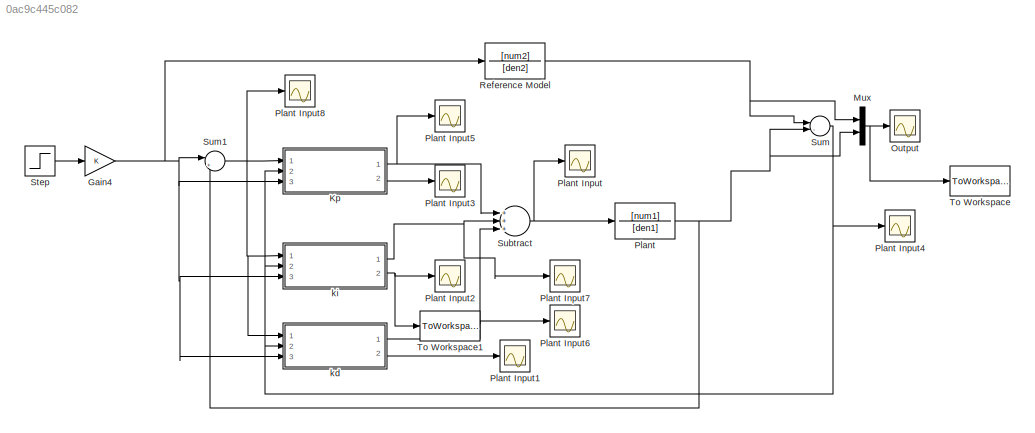
MODEL slx_0ac9c445c082
KIND model
CONFIG AbsTol = auto
CONFIG EnableMultiTasking = off
CONFIG FixedStep = auto
CONFIG MaxStep = auto
CONFIG MinStep = auto
CONFIG RelTol = 1e-3
CONFIG SampleTimeConstraint = Unconstrained
CONFIG Solver = VariableStepAuto
CONFIG SolverName = VariableStepAuto
CONFIG StartTime = 0.0
CONFIG StopTime = 10.0
BLOCK [Gain] Gain4
  OutDataTypeStr = Inherit: Inherit via internal rule
  ParamDataTypeStr = Inherit: Inherit via internal rule
  SaturateOnIntegerOverflow = off
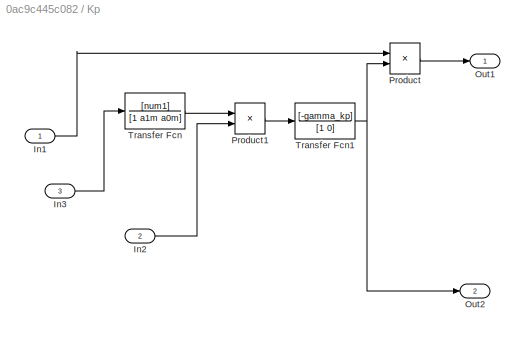
BLOCK [SubSystem] Kp 
  Ports = [3, 2]
  RequestExecContextInheritance = off
  Variant = off
BLOCK [Inport] Kp /In1
  IconDisplay = Port number
BLOCK [Inport] Kp /In2
  IconDisplay = Port number
  Port = 2
BLOCK [Inport] Kp /In3
  IconDisplay = Port number
  Port = 3
BLOCK [Outport] Kp /Out1
  IconDisplay = Port number
BLOCK [Outport] Kp /Out2
  IconDisplay = Port number
  Port = 2
BLOCK [Product] Kp /Product
  InputSameDT = off
  OutDataTypeStr = Inherit: Inherit via internal rule
  Ports = [2, 1]
  RndMeth = Floor
  SaturateOnIntegerOverflow = off
BLOCK [Product] Kp /Product1
  InputSameDT = off
  OutDataTypeStr = Inherit: Inherit via internal rule
  Ports = [2, 1]
  RndMeth = Floor
  SaturateOnIntegerOverflow = off
BLOCK [TransferFcn] Kp /Transfer Fcn
  Denominator = [1 a1m a0m]
  Numerator = [num1]
BLOCK [TransferFcn] Kp /Transfer Fcn1
  Denominator = [1 0]
  Numerator = [-gamma_kp]
BLOCK [Mux] Mux
  DisplayOption = bar
  Inputs = 2
  Ports = [2, 1]
BLOCK [Scope] Output
  NumInputPorts = 1
  Ports = [1]
  ScopeSpecificationString = Simulink.scopes.TimeScopeBlockCfg('CurrentConfiguration', extmgr.ConfigurationSet(extmgr.Configuration('Core','General UI',true),extmgr.Configuration('Core','Source UI',true),extmgr.Configuration('Sources','WiredSimulink',true,'DataLoggingVariableName','ScopeData1'),extmgr.Configuration('Visuals','Time Domain',true,'SerializedDisplays',{struct('MinYLimReal','-6917908617196979200000000000.00000','M...<+1652ch>
BLOCK [TransferFcn] Plant
  Denominator = [den1]
  Numerator = [num1]
BLOCK [Scope] Plant Input
  NumInputPorts = 1
  Ports = [1]
  ScopeSpecificationString = Simulink.scopes.TimeScopeBlockCfg('CurrentConfiguration', extmgr.ConfigurationSet(extmgr.Configuration('Core','General UI',true),extmgr.Configuration('Core','Source UI',true),extmgr.Configuration('Sources','WiredSimulink',true,'DataLoggingVariableName','ScopeData2'),extmgr.Configuration('Visuals','Time Domain',true,'SerializedDisplays',{struct('MinYLimReal','-81488705853174238000000000000000000000...<+3051ch>
BLOCK [Scope] Plant Input1
  NumInputPorts = 1
  Ports = [1]
  ScopeSpecificationString = Simulink.scopes.TimeScopeBlockCfg('CurrentConfiguration', extmgr.ConfigurationSet(extmgr.Configuration('Core','General UI',true),extmgr.Configuration('Core','Source UI',true),extmgr.Configuration('Sources','WiredSimulink',true,'DataLoggingVariableName','ScopeData3','DataLoggingSaveFormat','StructureWithTime','DataLoggingLimitDataPoints',true,'DataLoggingDecimation','1','DataLoggingDecimateData',tr...<+1711ch>
BLOCK [Scope] Plant Input2
  NumInputPorts = 1
  Ports = [1]
  ScopeSpecificationString = Simulink.scopes.TimeScopeBlockCfg('CurrentConfiguration', extmgr.ConfigurationSet(extmgr.Configuration('Core','General UI',true),extmgr.Configuration('Core','Source UI',true),extmgr.Configuration('Sources','WiredSimulink',true,'DataLoggingVariableName','ScopeData4'),extmgr.Configuration('Visuals','Time Domain',true,'SerializedDisplays',{struct('MinYLimReal','-11822518832671255000000000000000000000...<+2007ch>
BLOCK [Scope] Plant Input3
  NumInputPorts = 1
  Ports = [1]
  ScopeSpecificationString = Simulink.scopes.TimeScopeBlockCfg('CurrentConfiguration', extmgr.ConfigurationSet(extmgr.Configuration('Core','General UI',true),extmgr.Configuration('Core','Source UI',true),extmgr.Configuration('Sources','WiredSimulink',true,'DataLoggingVariableName','ScopeData5','DataLoggingSaveFormat','StructureWithTime','DataLoggingLimitDataPoints',true,'DataLoggingDecimation','1','DataLoggingDecimateData',tr...<+1677ch>
BLOCK [Scope] Plant Input4
  NumInputPorts = 1
  Ports = [1]
  ScopeSpecificationString = C++SS(StrPVP('Location','[6, 39, 1286, 762]'),StrPVP('Open','off'),MxPVP('AxesTitles',24,'struct(''axes1'',''%<SignalLabel>'')'),MxPVP('ScopeGraphics',28,'struct(''FigureColor'',''[0.5 0.5 0.5]'',''AxesColor'',''[0 0 0]'',''AxesTickColor'',''[1 1 1]'',''LineColors'',''[1 1 0;1 0 1;0 1 1;1 0 0;0 1 0;0 0 1]'',''LineStyles'',''-|-|-|-|-|-'',''LineWidths'',''[0.5 0.5 0.5 0.5 0.5 0.5]'',''MarkerStyles'...<+301ch>
BLOCK [Scope] Plant Input5
  NumInputPorts = 1
  Ports = [1]
  ScopeSpecificationString = Simulink.scopes.TimeScopeBlockCfg('CurrentConfiguration', extmgr.ConfigurationSet(extmgr.Configuration('Core','General UI',true),extmgr.Configuration('Core','Source UI',true),extmgr.Configuration('Sources','WiredSimulink',true,'DataLoggingVariableName','ScopeData7'),extmgr.Configuration('Visuals','Time Domain',true,'SerializedDisplays',{struct('MinYLimReal','-59839951419879215000000000000000000000...<+2904ch>
BLOCK [Scope] Plant Input6
  NumInputPorts = 1
  Ports = [1]
  ScopeSpecificationString = C++SS(StrPVP('SaveName','ScopeData8'),StrPVP('LimitDataPoints','on'),StrPVP('DataFormat','Array'),StrPVP('Decimation','1'),StrPVP('BlockParamSampleInput','off'))
BLOCK [Scope] Plant Input7
  NumInputPorts = 1
  Ports = [1]
  ScopeSpecificationString = C++SS(StrPVP('Location','[6, 39, 1286, 762]'),StrPVP('Open','off'),MxPVP('AxesTitles',24,'struct(''axes1'',''%<SignalLabel>'')'),MxPVP('ScopeGraphics',28,'struct(''FigureColor'',''[0.5 0.5 0.5]'',''AxesColor'',''[0 0 0]'',''AxesTickColor'',''[1 1 1]'',''LineColors'',''[1 1 0;1 0 1;0 1 1;1 0 0;0 1 0;0 0 1]'',''LineStyles'',''-|-|-|-|-|-'',''LineWidths'',''[0.5 0.5 0.5 0.5 0.5 0.5]'',''MarkerStyles'...<+301ch>
BLOCK [Scope] Plant Input8
  NumInputPorts = 1
  Ports = [1]
  ScopeSpecificationString = Simulink.scopes.TimeScopeBlockCfg('CurrentConfiguration', extmgr.ConfigurationSet(extmgr.Configuration('Core','General UI',true),extmgr.Configuration('Core','Source UI',true),extmgr.Configuration('Sources','WiredSimulink',true),extmgr.Configuration('Visuals','Time Domain',true,'SerializedDisplays',{struct('MinYLimReal','-12653807591008628000000000000000000000000000000000000000000000000000000000000...<+2254ch>
BLOCK [TransferFcn] Reference Model
  Denominator = [den2]
  Numerator = [num2]
BLOCK [Step] Step
  SampleTime = 0
  Time = 0
BLOCK [Sum] Subtract
  InputSameDT = off
  Inputs = +++
  OutDataTypeStr = Inherit: Inherit via internal rule
  Ports = [3, 1]
  SaturateOnIntegerOverflow = off
BLOCK [Sum] Sum
  IconShape = round
  InputSameDT = off
  Inputs = |-+|
  OutDataTypeStr = Inherit: Inherit via internal rule
  Ports = [2, 1]
BLOCK [Sum] Sum1
  IconShape = round
  InputSameDT = off
  Inputs = |+-
  OutDataTypeStr = Inherit: Inherit via internal rule
  Ports = [2, 1]
  SaturateOnIntegerOverflow = off
BLOCK [ToWorkspace] To Workspace
  MaxDataPoints = inf
  Ports = [1]
  SampleTime = -1
  SaveFormat = Timeseries
  VariableName = simout
BLOCK [ToWorkspace] To Workspace1
  MaxDataPoints = inf
  Ports = [1]
  SampleTime = -1
  SaveFormat = Timeseries
  VariableName = simout1
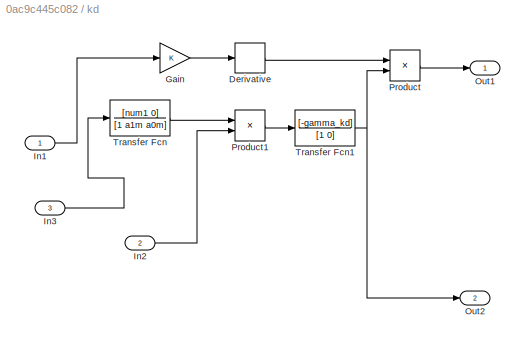
BLOCK [SubSystem] kd
  Ports = [3, 2]
  RequestExecContextInheritance = off
  Variant = off
BLOCK [Derivative] kd/Derivative
BLOCK [Gain] kd/Gain
  OutDataTypeStr = Inherit: Inherit via internal rule
  ParamDataTypeStr = Inherit: Inherit via internal rule
  SaturateOnIntegerOverflow = off
BLOCK [Inport] kd/In1
  IconDisplay = Port number
BLOCK [Inport] kd/In2
  IconDisplay = Port number
  Port = 2
BLOCK [Inport] kd/In3
  IconDisplay = Port number
  Port = 3
BLOCK [Outport] kd/Out1
  IconDisplay = Port number
BLOCK [Outport] kd/Out2
  IconDisplay = Port number
  Port = 2
BLOCK [Product] kd/Product
  InputSameDT = off
  OutDataTypeStr = Inherit: Inherit via internal rule
  Ports = [2, 1]
  RndMeth = Floor
  SaturateOnIntegerOverflow = off
BLOCK [Product] kd/Product1
  InputSameDT = off
  OutDataTypeStr = Inherit: Inherit via internal rule
  Ports = [2, 1]
  RndMeth = Floor
  SaturateOnIntegerOverflow = off
BLOCK [TransferFcn] kd/Transfer Fcn
  Denominator = [1 a1m a0m]
  Numerator = [num1 0]
BLOCK [TransferFcn] kd/Transfer Fcn1
  Denominator = [1 0]
  Numerator = [-gamma_kd]
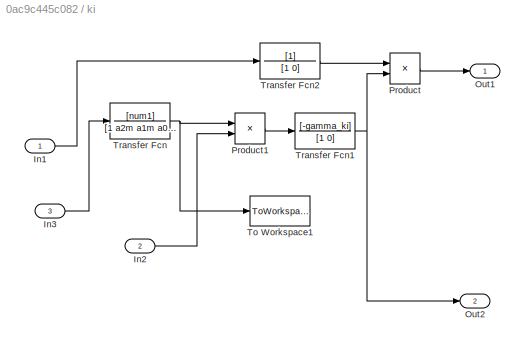
BLOCK [SubSystem] ki
  Ports = [3, 2]
  RequestExecContextInheritance = off
  Variant = off
BLOCK [Inport] ki/In1
  IconDisplay = Port number
BLOCK [Inport] ki/In2
  IconDisplay = Port number
  Port = 2
BLOCK [Inport] ki/In3
  IconDisplay = Port number
  Port = 3
BLOCK [Outport] ki/Out1
  IconDisplay = Port number
BLOCK [Outport] ki/Out2
  IconDisplay = Port number
  Port = 2
BLOCK [Product] ki/Product
  InputSameDT = off
  OutDataTypeStr = Inherit: Inherit via internal rule
  Ports = [2, 1]
  RndMeth = Floor
  SaturateOnIntegerOverflow = off
BLOCK [Product] ki/Product1
  InputSameDT = off
  OutDataTypeStr = Inherit: Inherit via internal rule
  Ports = [2, 1]
  RndMeth = Floor
  SaturateOnIntegerOverflow = off
BLOCK [ToWorkspace] ki/To Workspace1
  MaxDataPoints = inf
  Ports = [1]
  SampleTime = -1
  SaveFormat = Timeseries
  VariableName = simout2
BLOCK [TransferFcn] ki/Transfer Fcn
  Denominator = [1 a2m a1m a0m]
  Numerator = [num1]
BLOCK [TransferFcn] ki/Transfer Fcn1
  Denominator = [1 0]
  Numerator = [-gamma_ki]
BLOCK [TransferFcn] ki/Transfer Fcn2
  Denominator = [1 0]
NET Gain4:1 -> Kp :3, Reference Model:1, Sum1:1, kd:3, ki:3
LINE Kp /In1:1 -> Kp /Product:1
LINE Kp /In2:1 -> Kp /Product1:2
LINE Kp /In3:1 -> Kp /Transfer Fcn:1
LINE Kp /Product1:1 -> Kp /Transfer Fcn1:1
LINE Kp /Product:1 -> Kp /Out1:1
NET Kp /Transfer Fcn1:1 -> Kp /Out2:1, Kp /Product:2
LINE Kp /Transfer Fcn:1 -> Kp /Product1:1
NET Kp :1 -> Plant Input5:1, Subtract:1
LINE Kp :2 -> Plant Input3:1
NET Mux:1 -> Output:1, To Workspace:1
NET Plant:1 -> Mux:2, Sum1:2, Sum:2
NET Reference Model:1 -> Mux:1, Sum:1
LINE Step:1 -> Gain4:1
NET Subtract:1 -> Plant Input:1, Plant:1
NET Sum1:1 -> Kp :1, Plant Input8:1, kd:1, ki:1
NET Sum:1 -> Kp :2, Plant Input4:1, kd:2, ki:2
LINE kd/Derivative:1 -> kd/Product:1
LINE kd/Gain:1 -> kd/Derivative:1
LINE kd/In1:1 -> kd/Gain:1
LINE kd/In2:1 -> kd/Product1:2
LINE kd/In3:1 -> kd/Transfer Fcn:1
LINE kd/Product1:1 -> kd/Transfer Fcn1:1
LINE kd/Product:1 -> kd/Out1:1
NET kd/Transfer Fcn1:1 -> kd/Out2:1, kd/Product:2
LINE kd/Transfer Fcn:1 -> kd/Product1:1
NET kd:1 -> Plant Input6:1, Subtract:3
LINE kd:2 -> Plant Input1:1
LINE ki/In1:1 -> ki/Transfer Fcn2:1
LINE ki/In2:1 -> ki/Product1:2
LINE ki/In3:1 -> ki/Transfer Fcn:1
LINE ki/Product1:1 -> ki/Transfer Fcn1:1
LINE ki/Product:1 -> ki/Out1:1
NET ki/Transfer Fcn1:1 -> ki/Out2:1, ki/Product:2
LINE ki/Transfer Fcn2:1 -> ki/Product:1
NET ki/Transfer Fcn:1 -> ki/Product1:1, ki/To Workspace1:1
NET ki:1 -> Plant Input7:1, Subtract:2
NET ki:2 -> Plant Input2:1, To Workspace1:1
note: NET lines group one-source signal fan-out (src -> all destinations, sorted); 1:1 wires keep LINE
